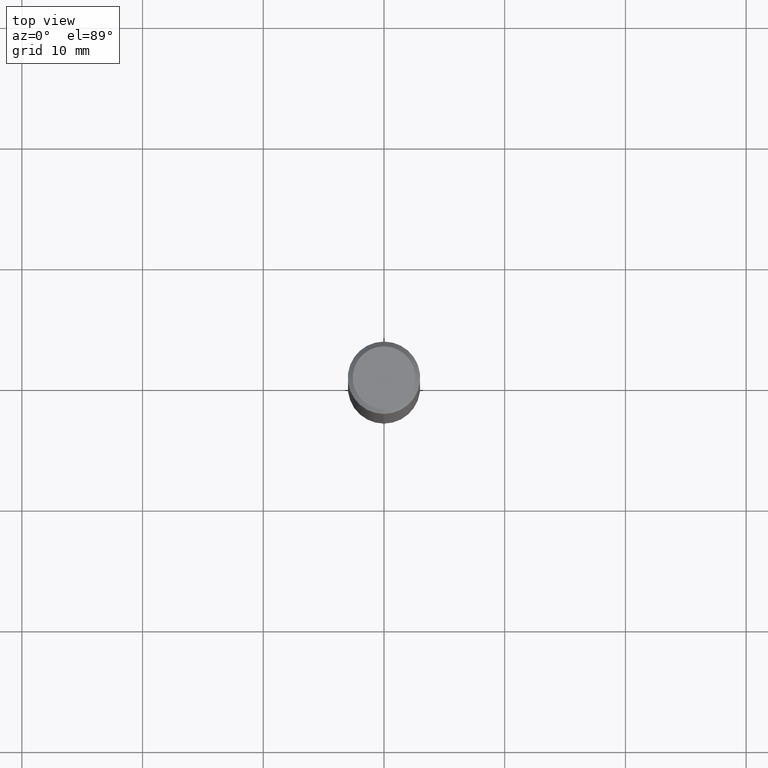
[diagram: clean part render]
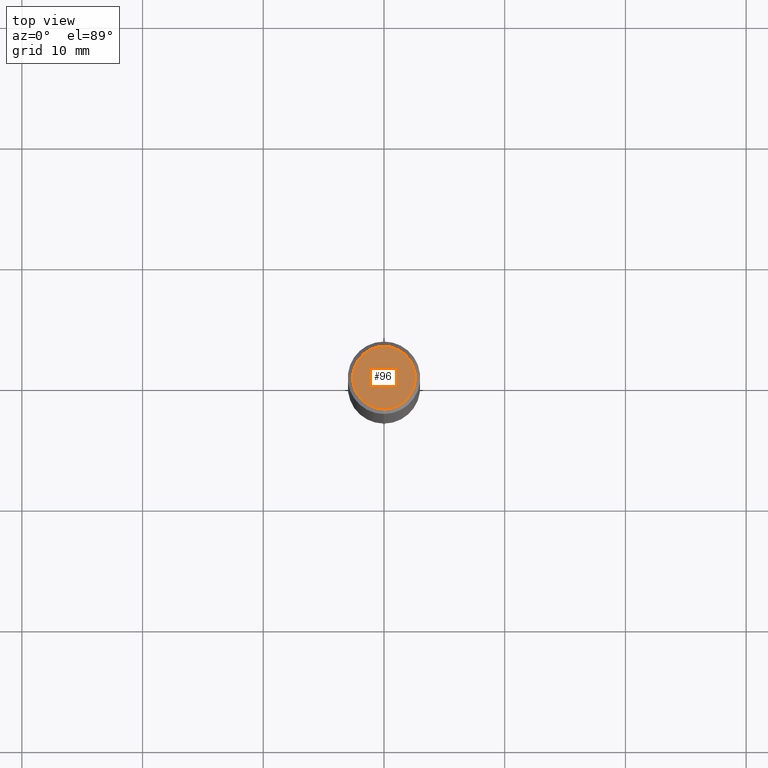
[diagram: same view with one face highlighted and labeled with its STEP entity id]
A machine part, top view. The second image highlights one B-rep face of the part: STEP entity #96.
In plain terms, the highlighted planar face has unit normal (-0, 0, 1).
Its self-contained STEP definition (entity closure, byte-faithful):
#96=ADVANCED_FACE('',(#218),#219,.T.);
#142=EDGE_CURVE('',#144,#174,#271,.T.);
#144=VERTEX_POINT('',#273);
#156=EDGE_CURVE('',#174,#144,#287,.T.);
#174=VERTEX_POINT('',#307);
#218=FACE_OUTER_BOUND('',#348,.T.);
#219=PLANE('',#349);
#271=CIRCLE('',#419,2.6);
#273=CARTESIAN_POINT('',(0.0,2.6,0.0));
#287=CIRCLE('',#437,2.6);
#307=CARTESIAN_POINT('',(3.18397651993818E-016,-2.6,0.0));
#348=EDGE_LOOP('',(#494,#495));
#349=AXIS2_PLACEMENT_3D('',#496,#497,#498);
#419=AXIS2_PLACEMENT_3D('',#563,#564,#565);
#437=AXIS2_PLACEMENT_3D('',#583,#584,#585);
#494=ORIENTED_EDGE('',*,*,#142,.F.);
#495=ORIENTED_EDGE('',*,*,#156,.F.);
#496=CARTESIAN_POINT('',(0.0,1.3,0.0));
#497=DIRECTION('',(-0.0,0.0,1.0));
#498=DIRECTION('',(0.0,-1.0,0.0));
#563=CARTESIAN_POINT('',(0.0,0.0,0.0));
#564=DIRECTION('',(0.0,0.0,-1.0));
#565=DIRECTION('',(0.0,1.0,0.0));
#583=CARTESIAN_POINT('',(0.0,0.0,0.0));
#584=DIRECTION('',(0.0,0.0,-1.0));
#585=DIRECTION('',(0.0,1.0,0.0));